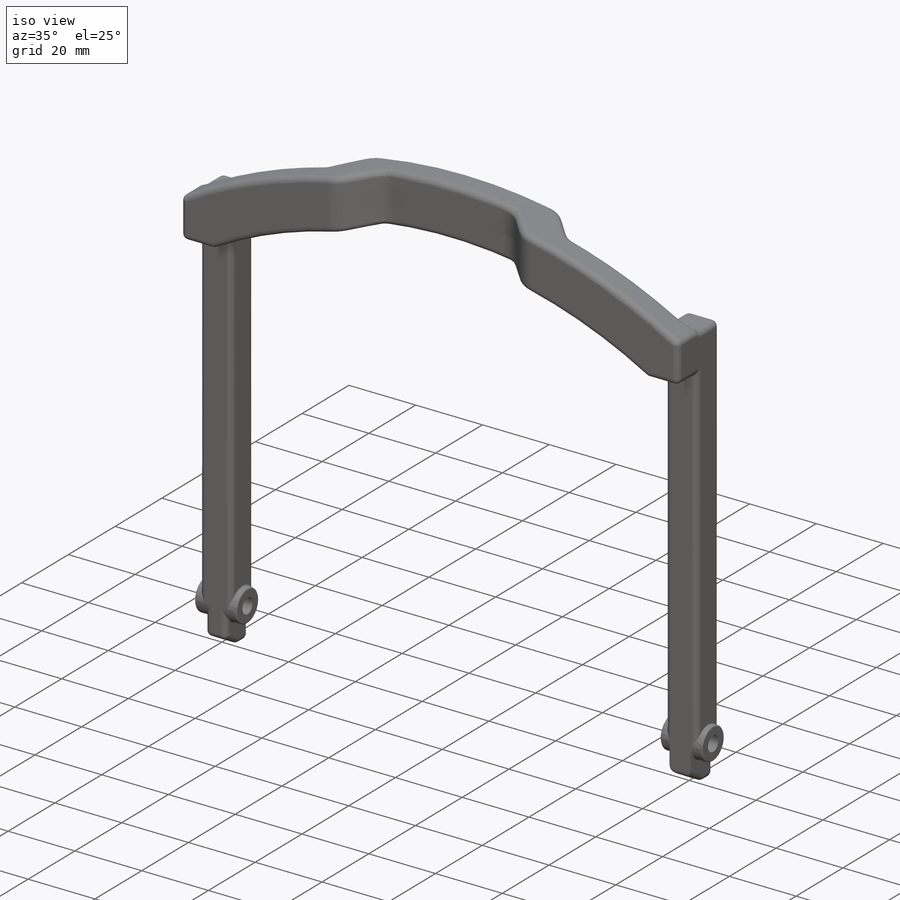
[diagram: iso view]
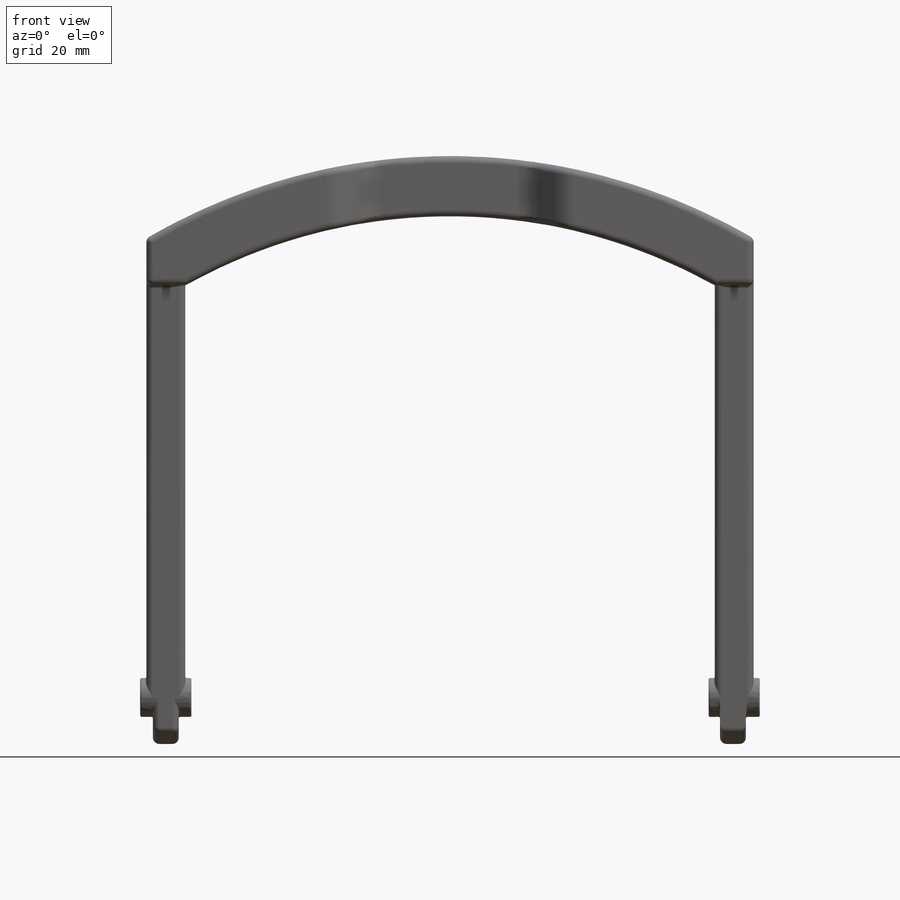
[diagram: front view]
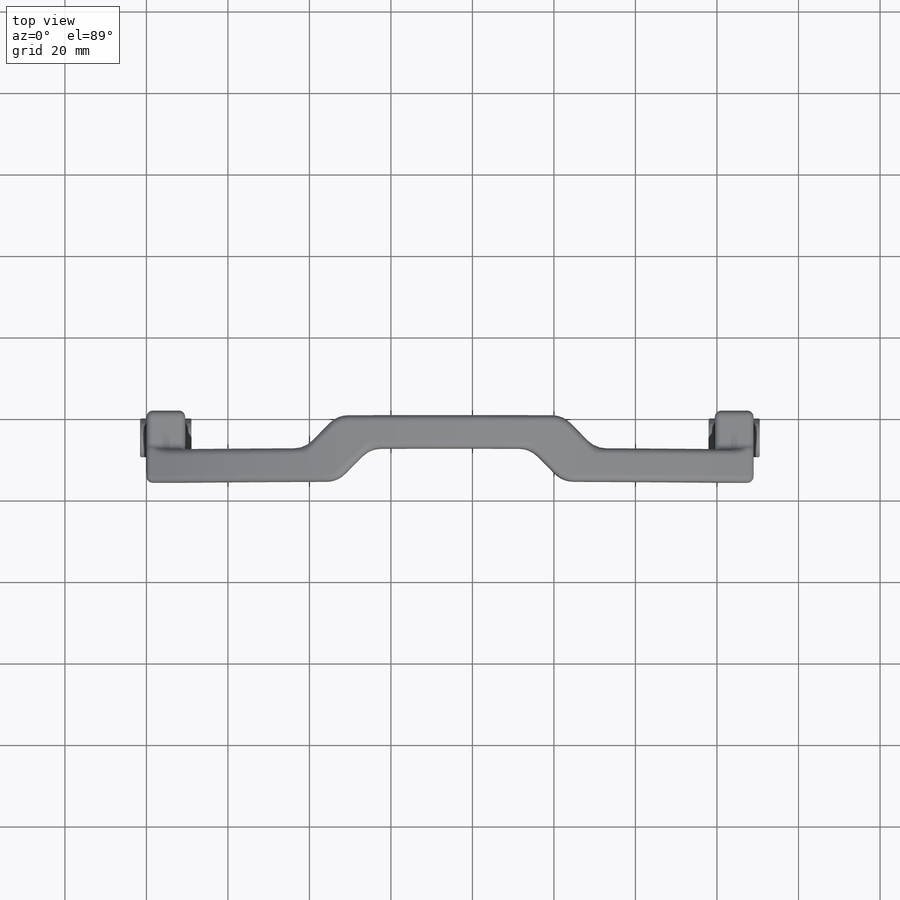
[diagram: top view]
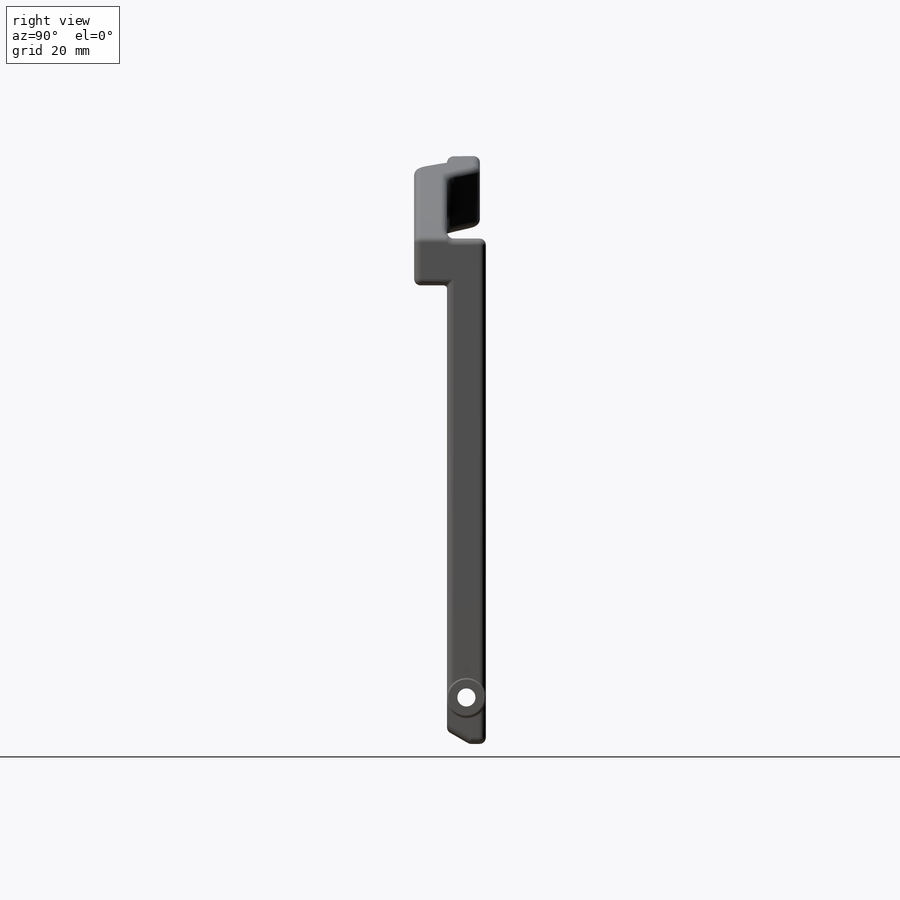
[diagram: right view]
SOLIDWORKS PART (.sldprt)
format: sldprt  version: not decoded by parser v0  size: 930,816 bytes
history: native  units: mm
features: fillet x10, sketch x7, extrude x5, chamfer x2, cut_extrude x2, material x1 (+16 scaffold rows collapsed)
feature tree (43):
  scaffold x16  (default folders/planes/origin — collapsed)
  material  "Material <not specified>"
  sketch  "Sketch1"  dims[D1=9.525mm D2=124.0282mm D3=124.0282mm]
  extrude  "Extrude1"  Depth=9.525mm
  sketch  "Sketch2"  dims[D1=20.2184mm D2=14.732mm D3=27.6225mm D4=27.6225mm]
  extrude  "Extrude2"  Depth=8.0645mm
  sketch  "Sketch3"  dims[D1=0.0mm D2=8.0645mm]
  extrude  "Extrude3"  Depth=8.0645mm
  chamfer  "Chamfer1"  Distance=8.0645mm Angle=45deg
  sketch  "Sketch7"  dims[D1=112.6236mm]
  extrude  "Extrude7"  Depth=1.524mm
  sketch  "Sketch8"
  extrude  "Extrude8"  Depth=1.524mm
  sketch  "Sketch9"  dims[D1=4.445mm]
  cut_extrude  "Extrude9"  [1 undecoded]
  sketch  "Sketch10"  dims[D1=3.175mm D2=3.175mm D3=0.0mm D4=3.175mm D5=3.175mm]
  cut_extrude  "Extrude10"  [1 undecoded]
  chamfer  "Chamfer2"  Distance=3.175mm Angle=60deg
  fillet  "Fillet5"  Radius=1.5875mm
  fillet  "Fillet6"  Radius=1.5875mm
  fillet  "Fillet7"  Radius=1.5875mm
  fillet  "Fillet8"  Radius=6.35mm
  fillet  "Fillet9"  Radius=1.5875mm
  fillet  "Fillet10"  Radius=1.5875mm
  fillet  "Fillet11"  Radius=1.5875mm
  fillet  "Fillet12"  Radius=0.79375mm
  fillet  "Fillet13"  Radius=1.5875mm
  fillet  "Fillet14"  Radius=0.396875mm
decode coverage: 23 of 26 modeling features carry decoded parameters
note: 2 parameter values undecoded
note: suppression state not decoded; provenance and decode notes live in map.json
